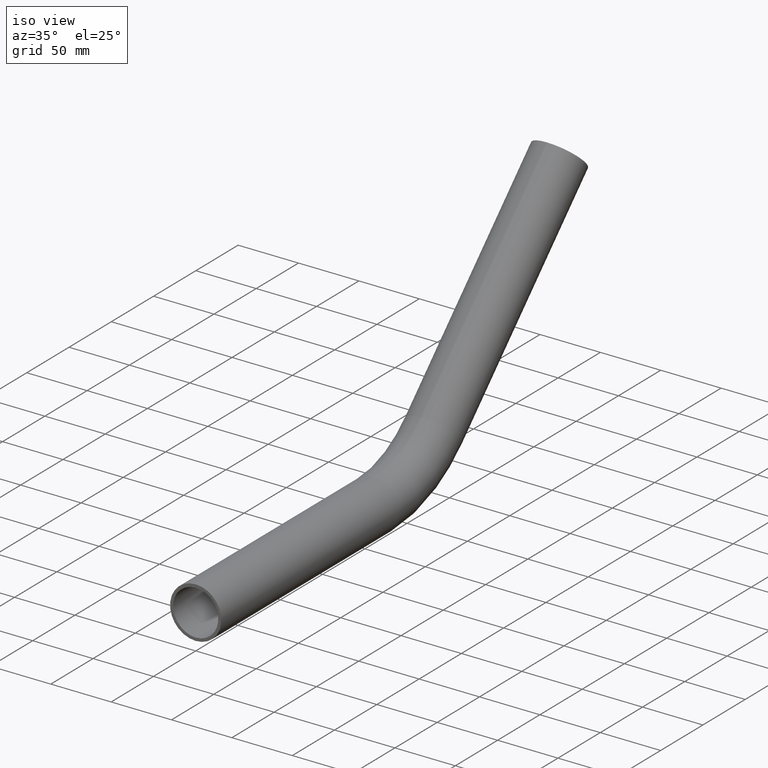
[diagram: clean part render]
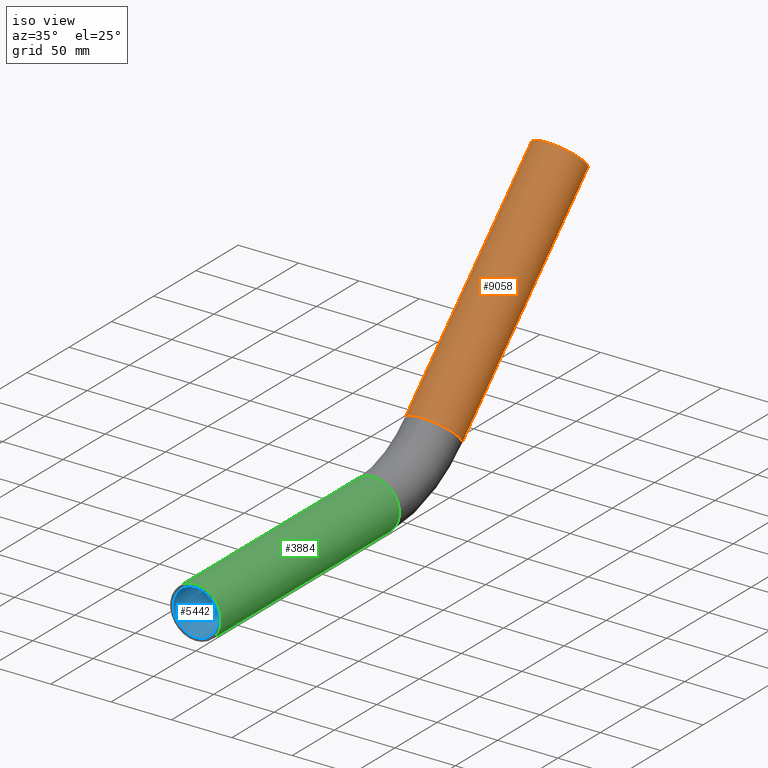
[diagram: same view with three faces highlighted in distinct colors, each labeled with its STEP entity id]
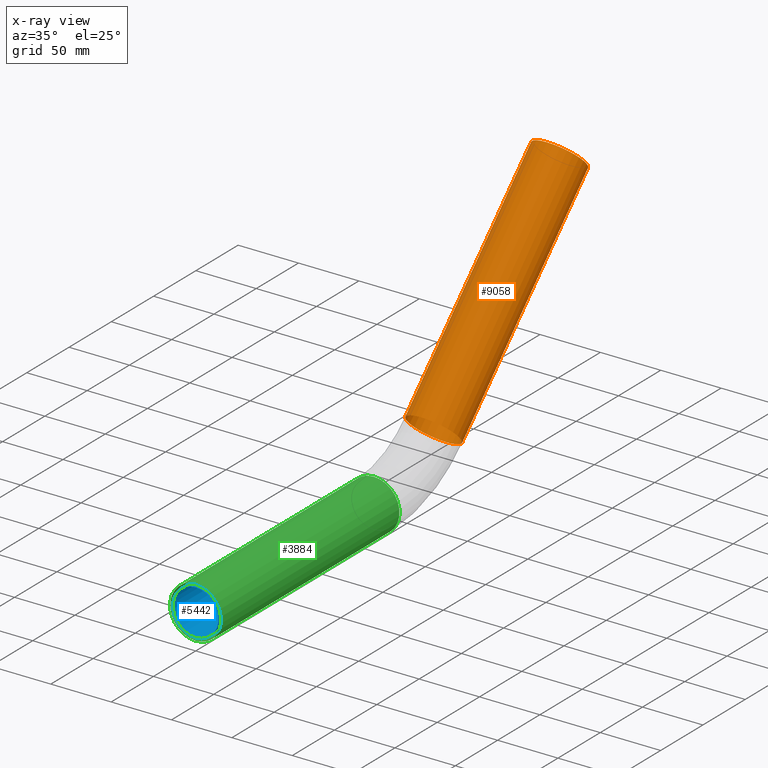
[diagram: x-ray of the same camera — body ghosted, the three highlighted faces saturated]
A machine part, iso view with three faces highlighted in distinct colors.
The next image is the same camera in x-ray (body ghosted, the three faces saturated) — at least one of them is partly hidden behind the body in this view.
Their STEP definitions:

[orange] entity #9058 — the highlighted cylindrical surface (bore or boss wall) has radius 21.2 mm, axis along (0, 0.7071, 0.7071).
#146 = DIRECTION ( 'NONE',  ( 0.000000000000000000, 0.7071067811865463515, 0.7071067811865486830 ) ) ;
#330 = CIRCLE ( 'NONE', #9502, 21.19999999999999929 ) ;
#1022 = CARTESIAN_POINT ( 'NONE',  ( 0.000000000000000000, 281.4407699487823606, 29.28932188134533732 ) ) ;
#1028 = EDGE_CURVE ( 'NONE', #3406, #3406, #330, .T. ) ;
#1727 = VERTEX_POINT ( 'NONE', #9424 ) ;
#1856 = AXIS2_PLACEMENT_3D ( 'NONE', #2134, #5643, #6637 ) ;
#1863 = EDGE_CURVE ( 'NONE', #1727, #1727, #7524, .T. ) ;
#2134 = CARTESIAN_POINT ( 'NONE',  ( 0.000000000000000000, 281.4407699487823606, 29.28932188134533732 ) ) ;
#3406 = VERTEX_POINT ( 'NONE', #10358 ) ;
#3640 = DIRECTION ( 'NONE',  ( 0.000000000000000000, -0.7071067811865483499, 0.7071067811865464625 ) ) ;
#3757 = DIRECTION ( 'NONE',  ( 0.000000000000000000, -0.7071067811865481278, 0.7071067811865469066 ) ) ;
#4510 = ORIENTED_EDGE ( 'NONE', *, *, #1863, .T. ) ;
#4639 = FACE_OUTER_BOUND ( 'NONE', #10601, .T. ) ;
#5185 = ORIENTED_EDGE ( 'NONE', *, *, #1028, .F. ) ;
#5534 = DIRECTION ( 'NONE',  ( 0.000000000000000000, 0.7071067811865465735, 0.7071067811865484609 ) ) ;
#5643 = DIRECTION ( 'NONE',  ( 0.000000000000000000, 0.7071067811865465735, 0.7071067811865484609 ) ) ;
#5697 = CYLINDRICAL_SURFACE ( 'NONE', #8163, 21.19999999999999218 ) ;
#6637 = DIRECTION ( 'NONE',  ( 0.000000000000000000, -0.7071067811865482389, 0.7071067811865466846 ) ) ;
#7204 = CARTESIAN_POINT ( 'NONE',  ( 0.000000000000000000, 430.4494468819291910, 178.2979988144926722 ) ) ;
#7524 = CIRCLE ( 'NONE', #1856, 21.19999999999999574 ) ;
#7939 = FACE_OUTER_BOUND ( 'NONE', #11131, .T. ) ;
#8163 = AXIS2_PLACEMENT_3D ( 'NONE', #1022, #146, #3640 ) ;
#9058 = ADVANCED_FACE ( 'NONE', ( #7939, #4639 ), #5697, .T. ) ;
#9424 = CARTESIAN_POINT ( 'NONE',  ( 0.000000000000000000, 266.4501061876275685, 44.27998564250012237 ) ) ;
#9502 = AXIS2_PLACEMENT_3D ( 'NONE', #7204, #5534, #3757 ) ;
#10358 = CARTESIAN_POINT ( 'NONE',  ( 0.000000000000000000, 415.4587831207743989, 193.2886625756474643 ) ) ;
#10601 = EDGE_LOOP ( 'NONE', ( #5185 ) ) ;
#11131 = EDGE_LOOP ( 'NONE', ( #4510 ) ) ;

[blue] entity #5442 — the highlighted cylindrical surface (bore or boss wall) has radius 18.7 mm, axis along (-0, -1, 0).
#28 = FACE_OUTER_BOUND ( 'NONE', #7733, .T. ) ;
#505 = EDGE_CURVE ( 'NONE', #7563, #7563, #2536, .T. ) ;
#744 = DIRECTION ( 'NONE',  ( -0.000000000000000000, -1.000000000000000000, 3.542202911650493129E-31 ) ) ;
#1069 = DIRECTION ( 'NONE',  ( 0.000000000000000000, 0.000000000000000000, -1.000000000000000000 ) ) ;
#1963 = EDGE_LOOP ( 'NONE', ( #7246 ) ) ;
#2536 = CIRCLE ( 'NONE', #6316, 18.70000000000000284 ) ;
#3303 = CARTESIAN_POINT ( 'NONE',  ( 0.000000000000000000, 0.000000000000000000, 1.094764425253763337E-44 ) ) ;
#3798 = CYLINDRICAL_SURFACE ( 'NONE', #10930, 18.70000000000000284 ) ;
#4130 = CARTESIAN_POINT ( 'NONE',  ( 0.000000000000000000, 0.000000000000000000, 18.70000000000000284 ) ) ;
#4334 = DIRECTION ( 'NONE',  ( 0.000000000000000000, 0.000000000000000000, 1.000000000000000000 ) ) ;
#5072 = CIRCLE ( 'NONE', #7744, 18.70000000000000284 ) ;
#5442 = ADVANCED_FACE ( 'NONE', ( #8483, #28 ), #3798, .F. ) ;
#6316 = AXIS2_PLACEMENT_3D ( 'NONE', #10959, #9120, #1069 ) ;
#6343 = ORIENTED_EDGE ( 'NONE', *, *, #10796, .F. ) ;
#7246 = ORIENTED_EDGE ( 'NONE', *, *, #505, .T. ) ;
#7563 = VERTEX_POINT ( 'NONE', #8608 ) ;
#7733 = EDGE_LOOP ( 'NONE', ( #6343 ) ) ;
#7744 = AXIS2_PLACEMENT_3D ( 'NONE', #3303, #9510, #4334 ) ;
#8483 = FACE_OUTER_BOUND ( 'NONE', #1963, .T. ) ;
#8608 = CARTESIAN_POINT ( 'NONE',  ( 0.000000000000000000, 210.7300918301275203, -18.70000000000000284 ) ) ;
#8737 = DIRECTION ( 'NONE',  ( 0.000000000000000000, 0.000000000000000000, -1.000000000000000000 ) ) ;
#9120 = DIRECTION ( 'NONE',  ( -0.000000000000000000, 1.000000000000000000, -0.000000000000000000 ) ) ;
#9510 = DIRECTION ( 'NONE',  ( 0.000000000000000000, 1.000000000000000000, 0.000000000000000000 ) ) ;
#10782 = VERTEX_POINT ( 'NONE', #4130 ) ;
#10796 = EDGE_CURVE ( 'NONE', #10782, #10782, #5072, .T. ) ;
#10930 = AXIS2_PLACEMENT_3D ( 'NONE', #11453, #744, #8737 ) ;
#10959 = CARTESIAN_POINT ( 'NONE',  ( 0.000000000000000000, 210.7300918301275203, 0.000000000000000000 ) ) ;
#11453 = CARTESIAN_POINT ( 'NONE',  ( 0.000000000000000000, 210.7300918301275203, -7.464487448530533640E-29 ) ) ;

[green] entity #3884 — the highlighted cylindrical surface (bore or boss wall) has radius 21.2 mm, axis along (-0, -1, 0).
#85 = VERTEX_POINT ( 'NONE', #4167 ) ;
#575 = CARTESIAN_POINT ( 'NONE',  ( 0.000000000000000000, 210.7300918301275203, -7.464487448530533640E-29 ) ) ;
#755 = DIRECTION ( 'NONE',  ( 0.000000000000000000, 0.000000000000000000, 1.000000000000000000 ) ) ;
#792 = DIRECTION ( 'NONE',  ( 0.000000000000000000, 1.000000000000000000, 0.000000000000000000 ) ) ;
#809 = EDGE_CURVE ( 'NONE', #85, #85, #4518, .T. ) ;
#940 = ORIENTED_EDGE ( 'NONE', *, *, #809, .T. ) ;
#1192 = AXIS2_PLACEMENT_3D ( 'NONE', #11311, #2425, #4196 ) ;
#1781 = ORIENTED_EDGE ( 'NONE', *, *, #3055, .F. ) ;
#2425 = DIRECTION ( 'NONE',  ( 0.000000000000000000, 1.000000000000000000, 0.000000000000000000 ) ) ;
#3055 = EDGE_CURVE ( 'NONE', #11495, #11495, #7615, .T. ) ;
#3177 = DIRECTION ( 'NONE',  ( -0.000000000000000000, -1.000000000000000000, 3.542202911650493129E-31 ) ) ;
#3884 = ADVANCED_FACE ( 'NONE', ( #9249, #4827 ), #7167, .T. ) ;
#4167 = CARTESIAN_POINT ( 'NONE',  ( 0.000000000000000000, 0.000000000000000000, 21.19999999999999929 ) ) ;
#4196 = DIRECTION ( 'NONE',  ( 0.000000000000000000, 0.000000000000000000, 1.000000000000000000 ) ) ;
#4518 = CIRCLE ( 'NONE', #9725, 21.19999999999999929 ) ;
#4640 = AXIS2_PLACEMENT_3D ( 'NONE', #575, #3177, #5851 ) ;
#4827 = FACE_OUTER_BOUND ( 'NONE', #6591, .T. ) ;
#5851 = DIRECTION ( 'NONE',  ( 0.000000000000000000, 0.000000000000000000, -1.000000000000000000 ) ) ;
#6061 = CARTESIAN_POINT ( 'NONE',  ( 0.000000000000000000, 0.000000000000000000, 0.000000000000000000 ) ) ;
#6591 = EDGE_LOOP ( 'NONE', ( #940 ) ) ;
#7167 = CYLINDRICAL_SURFACE ( 'NONE', #4640, 21.19999999999999929 ) ;
#7615 = CIRCLE ( 'NONE', #1192, 21.19999999999999929 ) ;
#8439 = EDGE_LOOP ( 'NONE', ( #1781 ) ) ;
#9249 = FACE_OUTER_BOUND ( 'NONE', #8439, .T. ) ;
#9725 = AXIS2_PLACEMENT_3D ( 'NONE', #6061, #792, #755 ) ;
#10316 = CARTESIAN_POINT ( 'NONE',  ( 0.000000000000000000, 210.7300918301275203, 21.19999999999999929 ) ) ;
#11311 = CARTESIAN_POINT ( 'NONE',  ( 0.000000000000000000, 210.7300918301275203, -7.464487448530533640E-29 ) ) ;
#11495 = VERTEX_POINT ( 'NONE', #10316 ) ;